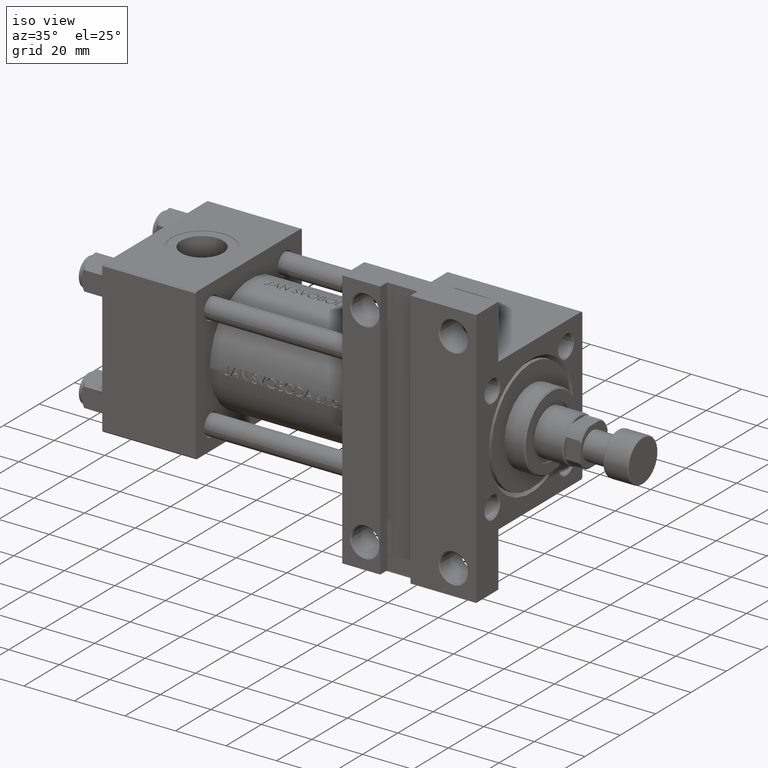
[diagram: clean part render]
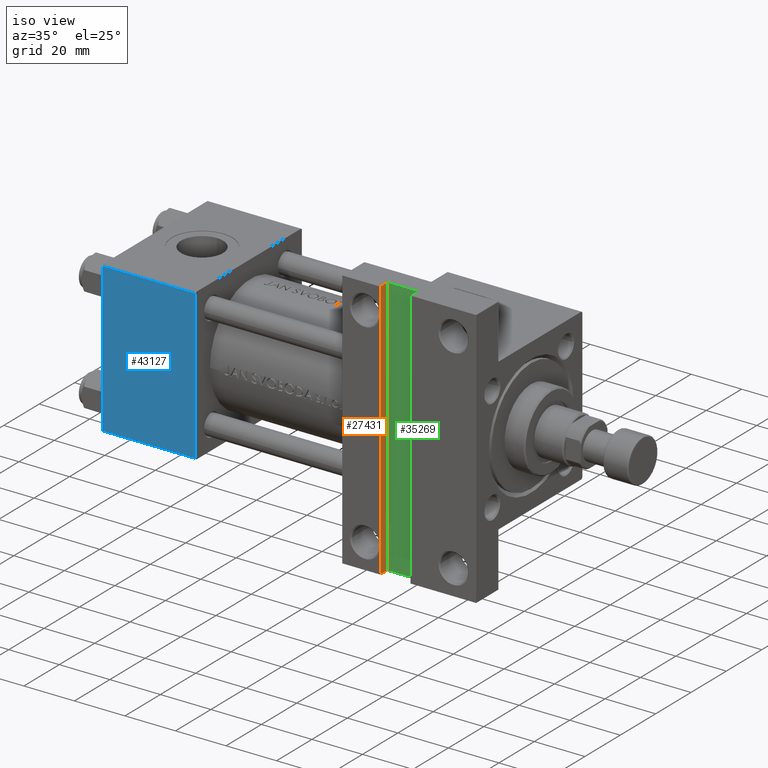
[diagram: same view with three faces highlighted in distinct colors, each labeled with its STEP entity id]
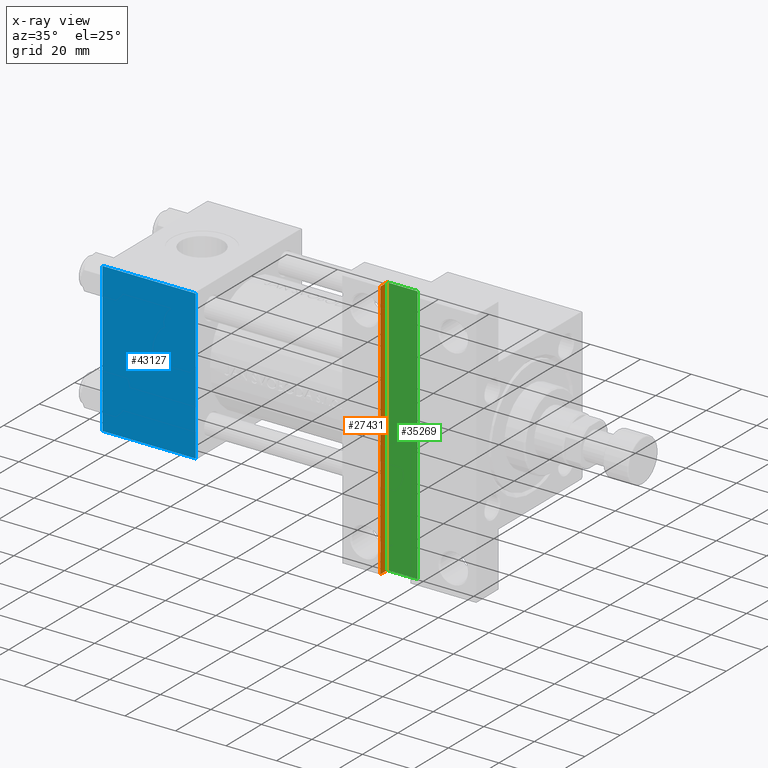
[diagram: x-ray of the same camera — body ghosted, the three highlighted faces saturated]
A machine part, iso view with three faces highlighted in distinct colors.
The next image is the same camera in x-ray (body ghosted, the three faces saturated) — at least one of them is partly hidden behind the body in this view.
Their STEP definitions:

[orange] entity #27431 — the highlighted planar face has unit normal (-1, 0, 0).
#3737 = VECTOR ( 'NONE', #11838, 1000.000000000000000 ) ;
#4565 = DIRECTION ( 'NONE',  ( 0.000000000000000000, 1.000000000000000000, 0.000000000000000000 ) ) ;
#6046 = FACE_OUTER_BOUND ( 'NONE', #25571, .T. ) ;
#8718 = LINE ( 'NONE', #22477, #15477 ) ;
#10017 = DIRECTION ( 'NONE',  ( -1.000000000000000000, 0.000000000000000000, 0.000000000000000000 ) ) ;
#10260 = DIRECTION ( 'NONE',  ( 0.000000000000000000, 0.000000000000000000, 1.000000000000000000 ) ) ;
#11044 = LINE ( 'NONE', #45549, #48632 ) ;
#11187 = ORIENTED_EDGE ( 'NONE', *, *, #14760, .T. ) ;
#11663 = EDGE_CURVE ( 'NONE', #30300, #20504, #19373, .T. ) ;
#11838 = DIRECTION ( 'NONE',  ( -0.000000000000000000, -0.000000000000000000, -1.000000000000000000 ) ) ;
#14760 = EDGE_CURVE ( 'NONE', #20504, #21652, #8718, .T. ) ;
#15477 = VECTOR ( 'NONE', #35032, 1000.000000000000000 ) ;
#17000 = VECTOR ( 'NONE', #27058, 1000.000000000000000 ) ;
#17787 = CARTESIAN_POINT ( 'NONE',  ( 109.9999999999999858, -51.49999999999999289, -29.99999999999999645 ) ) ;
#18836 = CARTESIAN_POINT ( 'NONE',  ( 109.9999999999999858, 51.50000000000000711, -25.99999999999999645 ) ) ;
#19318 = LINE ( 'NONE', #18836, #3737 ) ;
#19373 = LINE ( 'NONE', #38952, #17000 ) ;
#20504 = VERTEX_POINT ( 'NONE', #17787 ) ;
#21652 = VERTEX_POINT ( 'NONE', #25875 ) ;
#22477 = CARTESIAN_POINT ( 'NONE',  ( 109.9999999999999858, -51.49999999999999289, -29.99999999999999645 ) ) ;
#25571 = EDGE_LOOP ( 'NONE', ( #11187, #36831, #44095, #38677 ) ) ;
#25808 = AXIS2_PLACEMENT_3D ( 'NONE', #28895, #10017, #10260 ) ;
#25875 = CARTESIAN_POINT ( 'NONE',  ( 109.9999999999999858, 51.50000000000000711, -29.99999999999999645 ) ) ;
#27058 = DIRECTION ( 'NONE',  ( -0.000000000000000000, -0.000000000000000000, -1.000000000000000000 ) ) ;
#27254 = VERTEX_POINT ( 'NONE', #35861 ) ;
#27431 = ADVANCED_FACE ( 'NONE', ( #6046 ), #41032, .F. ) ;
#28285 = CARTESIAN_POINT ( 'NONE',  ( 109.9999999999999858, -51.49999999999999289, -25.99999999999999645 ) ) ;
#28895 = CARTESIAN_POINT ( 'NONE',  ( 109.9999999999999858, -51.49999999999999289, -25.99999999999999645 ) ) ;
#29950 = EDGE_CURVE ( 'NONE', #30300, #27254, #11044, .T. ) ;
#30300 = VERTEX_POINT ( 'NONE', #28285 ) ;
#35032 = DIRECTION ( 'NONE',  ( 0.000000000000000000, 1.000000000000000000, 0.000000000000000000 ) ) ;
#35861 = CARTESIAN_POINT ( 'NONE',  ( 109.9999999999999858, 51.50000000000000711, -25.99999999999999645 ) ) ;
#36831 = ORIENTED_EDGE ( 'NONE', *, *, #43906, .F. ) ;
#38677 = ORIENTED_EDGE ( 'NONE', *, *, #11663, .T. ) ;
#38952 = CARTESIAN_POINT ( 'NONE',  ( 109.9999999999999858, -51.49999999999999289, -25.99999999999999645 ) ) ;
#41032 = PLANE ( 'NONE',  #25808 ) ;
#43906 = EDGE_CURVE ( 'NONE', #27254, #21652, #19318, .T. ) ;
#44095 = ORIENTED_EDGE ( 'NONE', *, *, #29950, .F. ) ;
#45549 = CARTESIAN_POINT ( 'NONE',  ( 109.9999999999999858, -51.49999999999999289, -25.99999999999999645 ) ) ;
#48632 = VECTOR ( 'NONE', #4565, 1000.000000000000000 ) ;

[blue] entity #43127 — the highlighted planar face has unit normal (0, -1, -0).
#322 = DIRECTION ( 'NONE',  ( 0.000000000000000000, 1.000000000000000000, 1.156482317317871725E-16 ) ) ;
#548 = EDGE_CURVE ( 'NONE', #27974, #24528, #4543, .T. ) ;
#983 = CARTESIAN_POINT ( 'NONE',  ( 0.000000000000000000, -29.50000000000000000, -30.00000000000000711 ) ) ;
#2148 = AXIS2_PLACEMENT_3D ( 'NONE', #34349, #8534, #322 ) ;
#4543 = LINE ( 'NONE', #19730, #22256 ) ;
#4827 = CARTESIAN_POINT ( 'NONE',  ( 0.000000000000000000, 29.49999999999997868, -30.00000000000000000 ) ) ;
#4939 = EDGE_LOOP ( 'NONE', ( #29147, #23302, #44945, #42631 ) ) ;
#6198 = VECTOR ( 'NONE', #8685, 1000.000000000000000 ) ;
#6769 = VERTEX_POINT ( 'NONE', #983 ) ;
#7940 = LINE ( 'NONE', #23128, #6198 ) ;
#8534 = DIRECTION ( 'NONE',  ( 0.000000000000000000, 1.156482317317871725E-16, -1.000000000000000000 ) ) ;
#8685 = DIRECTION ( 'NONE',  ( 0.000000000000000000, -1.000000000000000000, -1.156482317317871725E-16 ) ) ;
#15757 = PLANE ( 'NONE',  #2148 ) ;
#19247 = FACE_OUTER_BOUND ( 'NONE', #4939, .T. ) ;
#19278 = EDGE_CURVE ( 'NONE', #47450, #27974, #28865, .T. ) ;
#19730 = CARTESIAN_POINT ( 'NONE',  ( 37.00000000000000000, 29.99999999999999289, -30.00000000000000000 ) ) ;
#22256 = VECTOR ( 'NONE', #34840, 1000.000000000000000 ) ;
#23128 = CARTESIAN_POINT ( 'NONE',  ( 0.000000000000000000, 29.99999999999999289, -30.00000000000000000 ) ) ;
#23302 = ORIENTED_EDGE ( 'NONE', *, *, #19278, .T. ) ;
#24528 = VERTEX_POINT ( 'NONE', #43555 ) ;
#27974 = VERTEX_POINT ( 'NONE', #28668 ) ;
#28668 = CARTESIAN_POINT ( 'NONE',  ( 37.00000000000000000, 29.49999999999997868, -30.00000000000000000 ) ) ;
#28865 = LINE ( 'NONE', #47974, #44954 ) ;
#29147 = ORIENTED_EDGE ( 'NONE', *, *, #46043, .F. ) ;
#29823 = EDGE_CURVE ( 'NONE', #24528, #6769, #33631, .T. ) ;
#33146 = DIRECTION ( 'NONE',  ( -1.000000000000000000, 0.000000000000000000, 0.000000000000000000 ) ) ;
#33631 = LINE ( 'NONE', #40601, #46266 ) ;
#34349 = CARTESIAN_POINT ( 'NONE',  ( 37.00000000000000000, 29.99999999999999289, -30.00000000000000000 ) ) ;
#34840 = DIRECTION ( 'NONE',  ( 0.000000000000000000, -1.000000000000000000, -1.156482317317871725E-16 ) ) ;
#40601 = CARTESIAN_POINT ( 'NONE',  ( 0.000000000000000000, -29.50000000000001066, -30.00000000000000711 ) ) ;
#42631 = ORIENTED_EDGE ( 'NONE', *, *, #29823, .T. ) ;
#43127 = ADVANCED_FACE ( 'NONE', ( #19247 ), #15757, .T. ) ;
#43555 = CARTESIAN_POINT ( 'NONE',  ( 37.00000000000000000, -29.50000000000000000, -30.00000000000000711 ) ) ;
#43998 = DIRECTION ( 'NONE',  ( 1.000000000000000000, 0.000000000000000000, 0.000000000000000000 ) ) ;
#44945 = ORIENTED_EDGE ( 'NONE', *, *, #548, .T. ) ;
#44954 = VECTOR ( 'NONE', #43998, 1000.000000000000000 ) ;
#46043 = EDGE_CURVE ( 'NONE', #47450, #6769, #7940, .T. ) ;
#46266 = VECTOR ( 'NONE', #33146, 1000.000000000000000 ) ;
#47450 = VERTEX_POINT ( 'NONE', #4827 ) ;
#47974 = CARTESIAN_POINT ( 'NONE',  ( 37.00000000000000000, 29.49999999999997868, -30.00000000000000000 ) ) ;

[green] entity #35269 — the highlighted planar face has unit normal (0, -1, 0).
#97 = ORIENTED_EDGE ( 'NONE', *, *, #29950, .T. ) ;
#411 = DIRECTION ( 'NONE',  ( -1.000000000000000000, 0.000000000000000000, -0.000000000000000000 ) ) ;
#1406 = DIRECTION ( 'NONE',  ( -0.000000000000000000, -1.000000000000000000, -0.000000000000000000 ) ) ;
#1798 = EDGE_CURVE ( 'NONE', #27254, #45504, #3178, .T. ) ;
#3178 = LINE ( 'NONE', #33235, #24730 ) ;
#3603 = VECTOR ( 'NONE', #1406, 1000.000000000000000 ) ;
#4565 = DIRECTION ( 'NONE',  ( 0.000000000000000000, 1.000000000000000000, 0.000000000000000000 ) ) ;
#7634 = DIRECTION ( 'NONE',  ( 0.000000000000000000, 0.000000000000000000, -1.000000000000000000 ) ) ;
#9128 = CARTESIAN_POINT ( 'NONE',  ( 109.9999999999999858, -51.49999999999999289, -25.99999999999999645 ) ) ;
#10890 = VERTEX_POINT ( 'NONE', #15873 ) ;
#11044 = LINE ( 'NONE', #45549, #48632 ) ;
#12473 = ORIENTED_EDGE ( 'NONE', *, *, #1798, .T. ) ;
#14403 = EDGE_LOOP ( 'NONE', ( #19891, #19782, #97, #12473 ) ) ;
#15873 = CARTESIAN_POINT ( 'NONE',  ( 121.9999999999999858, -51.50000000000000711, -25.99999999999999645 ) ) ;
#16294 = AXIS2_PLACEMENT_3D ( 'NONE', #34441, #7634, #411 ) ;
#18377 = DIRECTION ( 'NONE',  ( 1.000000000000000000, 0.000000000000000000, 0.000000000000000000 ) ) ;
#19330 = FACE_OUTER_BOUND ( 'NONE', #14403, .T. ) ;
#19782 = ORIENTED_EDGE ( 'NONE', *, *, #38183, .T. ) ;
#19891 = ORIENTED_EDGE ( 'NONE', *, *, #37061, .T. ) ;
#20329 = LINE ( 'NONE', #35438, #3603 ) ;
#20591 = DIRECTION ( 'NONE',  ( -1.000000000000000000, -0.000000000000000000, -0.000000000000000000 ) ) ;
#24730 = VECTOR ( 'NONE', #18377, 1000.000000000000000 ) ;
#27254 = VERTEX_POINT ( 'NONE', #35861 ) ;
#28285 = CARTESIAN_POINT ( 'NONE',  ( 109.9999999999999858, -51.49999999999999289, -25.99999999999999645 ) ) ;
#29950 = EDGE_CURVE ( 'NONE', #30300, #27254, #11044, .T. ) ;
#30300 = VERTEX_POINT ( 'NONE', #28285 ) ;
#33235 = CARTESIAN_POINT ( 'NONE',  ( 109.9999999999999858, 51.50000000000000711, -25.99999999999999645 ) ) ;
#33460 = PLANE ( 'NONE',  #16294 ) ;
#34441 = CARTESIAN_POINT ( 'NONE',  ( 0.000000000000000000, 0.000000000000000000, -25.99999999999999645 ) ) ;
#35269 = ADVANCED_FACE ( 'NONE', ( #19330 ), #33460, .T. ) ;
#35438 = CARTESIAN_POINT ( 'NONE',  ( 121.9999999999999858, -51.49999999999999289, -25.99999999999999645 ) ) ;
#35861 = CARTESIAN_POINT ( 'NONE',  ( 109.9999999999999858, 51.50000000000000711, -25.99999999999999645 ) ) ;
#37061 = EDGE_CURVE ( 'NONE', #45504, #10890, #20329, .T. ) ;
#38183 = EDGE_CURVE ( 'NONE', #10890, #30300, #43140, .T. ) ;
#40934 = VECTOR ( 'NONE', #20591, 1000.000000000000000 ) ;
#43140 = LINE ( 'NONE', #9128, #40934 ) ;
#45504 = VERTEX_POINT ( 'NONE', #48253 ) ;
#45549 = CARTESIAN_POINT ( 'NONE',  ( 109.9999999999999858, -51.49999999999999289, -25.99999999999999645 ) ) ;
#48253 = CARTESIAN_POINT ( 'NONE',  ( 121.9999999999999858, 51.50000000000000711, -25.99999999999999645 ) ) ;
#48632 = VECTOR ( 'NONE', #4565, 1000.000000000000000 ) ;